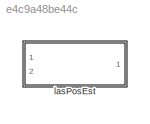
MODEL slx_e4c9a48be44c
KIND library
CONFIG AbsTol = auto
CONFIG EnableMultiTasking = off
CONFIG FixedStep = auto
CONFIG MaxStep = auto
CONFIG MinStep = auto
CONFIG RelTol = 1e-3
CONFIG SampleTimeConstraint = Unconstrained
CONFIG SolverName = VariableStepAuto
CONFIG StartTime = 0.0
CONFIG StopTime = 10.0
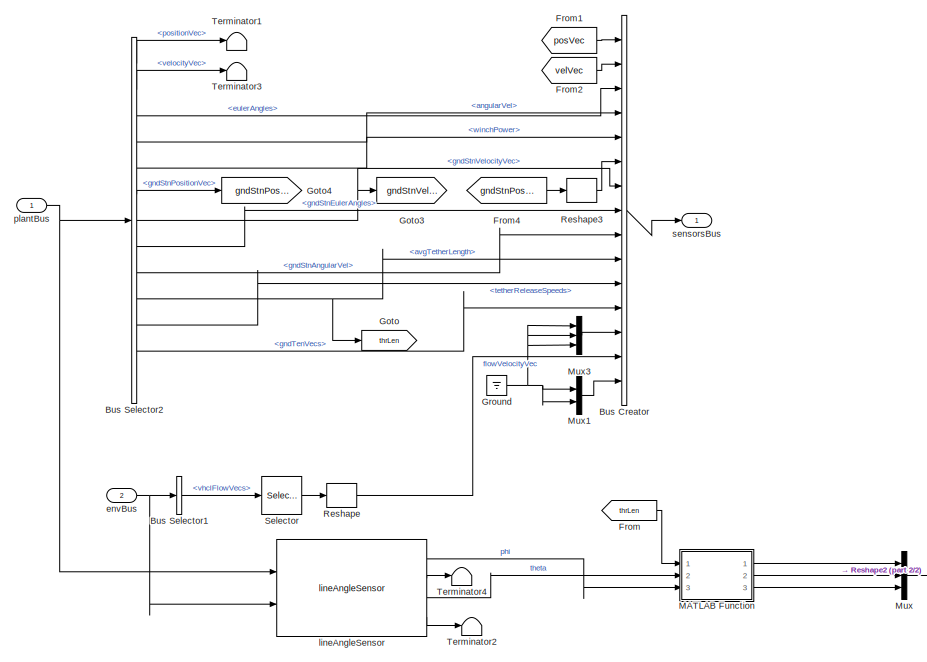
[diagram: lasPosEst - part 1/2, left side, full height]
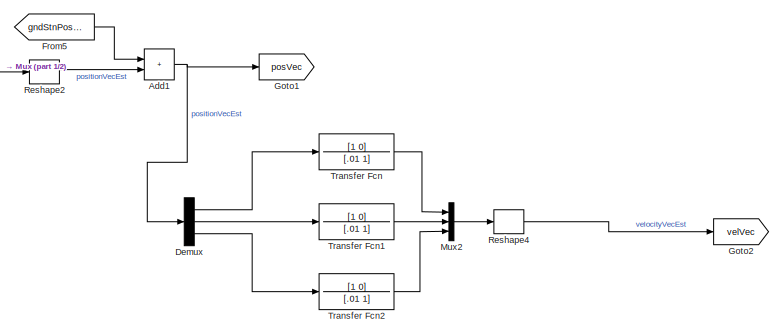
[diagram: lasPosEst - part 2/2, bottom right region]
BLOCK [SubSystem] lasPosEst
  InitFcn = initializeBussesFromBlock(gcb)
  LoadFcn = initializeBussesFromBlock(gcb)
  Ports = [2, 1]
  RequestExecContextInheritance = off
  StartFcn = initializeBussesFromBlock(gcb)
  VariantControl = VSS_sensors_lasPosEst
BLOCK [Sum] lasPosEst/Add1
  IconShape = rectangular
  Ports = [2, 1]
BLOCK [BusCreator] lasPosEst/Bus Creator
  DisplayOption = bar
  InheritFromInputs = off
  Inputs = 15
  NonVirtualBus = on
  OutDataTypeStr = Bus: sensorsBus
  Ports = [15, 1]
BLOCK [BusSelector] lasPosEst/Bus Selector1
  OutputSignals = vhclFlowVecs
  Ports = [1, 1]
BLOCK [BusSelector] lasPosEst/Bus Selector2
  OutputSignals = positionVec,velocityVec,eulerAngles,angularVel,winchPower,gndStnPositionVec,gndStnVelocityVec,gndStnEulerAngles,gndStnAngularVel,avgTetherLength,tetherReleaseSpeeds,gndTenVecs,airTenVecs
  Ports = [1, 13]
BLOCK [Demux] lasPosEst/Demux
  Outputs = 3
  Ports = [1, 3]
BLOCK [From] lasPosEst/From
  GotoTag = thrLen
BLOCK [From] lasPosEst/From1
  GotoTag = posVec
BLOCK [From] lasPosEst/From2
  GotoTag = velVec
BLOCK [From] lasPosEst/From4
  GotoTag = gndStnPosVec
BLOCK [From] lasPosEst/From5
  GotoTag = gndStnPosVec
BLOCK [Goto] lasPosEst/Goto
  GotoTag = thrLen
BLOCK [Goto] lasPosEst/Goto1
  GotoTag = posVec
BLOCK [Goto] lasPosEst/Goto2
  GotoTag = velVec
BLOCK [Goto] lasPosEst/Goto3
  GotoTag = gndStnVelVec
BLOCK [Goto] lasPosEst/Goto4
  GotoTag = gndStnPosVec
BLOCK [Ground] lasPosEst/Ground
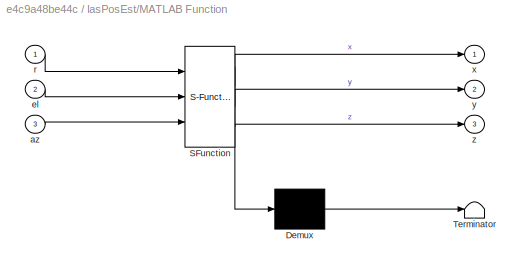
BLOCK [SubSystem] lasPosEst/MATLAB Function
  ErrorFcn = Stateflow.Translate.translate
  PermitHierarchicalResolution = ExplicitOnly
  Ports = [3, 3]
  RequestExecContextInheritance = off
  SFBlockType = MATLAB Function
  TreatAsAtomicUnit = on
BLOCK [Demux] lasPosEst/MATLAB Function/ Demux 
  Outputs = 1
  Ports = [1, 1]
BLOCK [S-Function] lasPosEst/MATLAB Function/ SFunction 
  EnableBusSupport = off
  FunctionName = sf_sfun
  PortCounts = [3 4]
  Ports = [3, 4]
  SFcnIsStateOwnerBlock = off
  SFunctionDeploymentMode = off
  Tag = Stateflow S-Function 1
BLOCK [Terminator] lasPosEst/MATLAB Function/ Terminator 
BLOCK [Inport] lasPosEst/MATLAB Function/az
  Port = 3
BLOCK [Inport] lasPosEst/MATLAB Function/el
  Port = 2
BLOCK [Inport] lasPosEst/MATLAB Function/r
BLOCK [Outport] lasPosEst/MATLAB Function/x
BLOCK [Outport] lasPosEst/MATLAB Function/y
  Port = 2
BLOCK [Outport] lasPosEst/MATLAB Function/z
  Port = 3
BLOCK [Mux] lasPosEst/Mux
  DisplayOption = bar
  Inputs = 3
  Ports = [3, 1]
BLOCK [Mux] lasPosEst/Mux1
  DisplayOption = bar
  Inputs = 2
  Ports = [2, 1]
BLOCK [Mux] lasPosEst/Mux2
  DisplayOption = bar
  Inputs = 3
  Ports = [3, 1]
BLOCK [Mux] lasPosEst/Mux3
  DisplayOption = bar
  Inputs = 3
  Ports = [3, 1]
BLOCK [Reshape] lasPosEst/Reshape
  OutputDimensionality = Column vector (2-D)
  Ports = [1, 1]
BLOCK [Reshape] lasPosEst/Reshape2
  OutputDimensionality = Column vector (2-D)
  Ports = [1, 1]
BLOCK [Reshape] lasPosEst/Reshape3
  OutputDimensionality = Column vector (2-D)
  Ports = [1, 1]
BLOCK [Reshape] lasPosEst/Reshape4
  OutputDimensionality = Column vector (2-D)
  Ports = [1, 1]
BLOCK [Selector] lasPosEst/Selector
  IndexOptions = Select all,Index vector (dialog)
  Indices = [1 3],1
  InputPortWidth = 3
  NumberOfDimensions = 2
  OutputSizes = 1,1
  Ports = [1, 1]
BLOCK [Terminator] lasPosEst/Terminator1
BLOCK [Terminator] lasPosEst/Terminator2
BLOCK [Terminator] lasPosEst/Terminator3
BLOCK [Terminator] lasPosEst/Terminator4
BLOCK [TransferFcn] lasPosEst/Transfer Fcn
  Denominator = [.01 1]
  Numerator = [1 0]
BLOCK [TransferFcn] lasPosEst/Transfer Fcn1
  Denominator = [.01 1]
  Numerator = [1 0]
BLOCK [TransferFcn] lasPosEst/Transfer Fcn2
  Denominator = [.01 1]
  Numerator = [1 0]
BLOCK [Inport] lasPosEst/envBus
  OutDataTypeStr = Bus: envBus
  Port = 2
BLOCK [Reference] lasPosEst/lineAngleSensor  REF=lineAngleSensor/lineAngleSensor
  Ports = [2, 4]
  SourceBlock = lineAngleSensor/lineAngleSensor
BLOCK [Inport] lasPosEst/plantBus
  OutDataTypeStr = Bus: plantBus
BLOCK [Outport] lasPosEst/sensorsBus
  OutDataTypeStr = Bus: sensorsBus
  VectorParamsAs1DForOutWhenUnconnected = off
NET lasPosEst/Add1:1 -> lasPosEst/Demux:1, lasPosEst/Goto1:1
LINE lasPosEst/Bus Creator:1 -> lasPosEst/sensorsBus:1
LINE lasPosEst/Bus Selector1:1 -> lasPosEst/Selector:1
LINE lasPosEst/Bus Selector2:1 -> lasPosEst/Terminator1:1
NET lasPosEst/Bus Selector2:10 -> lasPosEst/Bus Creator:10, lasPosEst/Goto:1
LINE lasPosEst/Bus Selector2:11 -> lasPosEst/Bus Creator:11
LINE lasPosEst/Bus Selector2:12 -> lasPosEst/Bus Creator:12
LINE lasPosEst/Bus Selector2:2 -> lasPosEst/Terminator3:1
LINE lasPosEst/Bus Selector2:3 -> lasPosEst/Bus Creator:3
LINE lasPosEst/Bus Selector2:4 -> lasPosEst/Bus Creator:4
LINE lasPosEst/Bus Selector2:5 -> lasPosEst/Bus Creator:5
LINE lasPosEst/Bus Selector2:6 -> lasPosEst/Goto4:1
NET lasPosEst/Bus Selector2:7 -> lasPosEst/Bus Creator:7, lasPosEst/Goto3:1
LINE lasPosEst/Bus Selector2:8 -> lasPosEst/Bus Creator:8
LINE lasPosEst/Bus Selector2:9 -> lasPosEst/Bus Creator:9
LINE lasPosEst/Demux:1 -> lasPosEst/Transfer Fcn:1
LINE lasPosEst/Demux:2 -> lasPosEst/Transfer Fcn1:1
LINE lasPosEst/Demux:3 -> lasPosEst/Transfer Fcn2:1
LINE lasPosEst/From1:1 -> lasPosEst/Bus Creator:1
LINE lasPosEst/From2:1 -> lasPosEst/Bus Creator:2
LINE lasPosEst/From4:1 -> lasPosEst/Reshape3:1
LINE lasPosEst/From5:1 -> lasPosEst/Add1:1
LINE lasPosEst/From:1 -> lasPosEst/MATLAB Function:1
NET lasPosEst/Ground:1 -> lasPosEst/Mux1:1, lasPosEst/Mux1:2, lasPosEst/Mux3:1, lasPosEst/Mux3:2, lasPosEst/Mux3:3
LINE lasPosEst/MATLAB Function:1 -> lasPosEst/Mux:1
LINE lasPosEst/MATLAB Function:2 -> lasPosEst/Mux:2
LINE lasPosEst/MATLAB Function:3 -> lasPosEst/Mux:3
LINE lasPosEst/Mux1:1 -> lasPosEst/Bus Creator:15
LINE lasPosEst/Mux2:1 -> lasPosEst/Reshape4:1
LINE lasPosEst/Mux3:1 -> lasPosEst/Bus Creator:13
LINE lasPosEst/Mux:1 -> lasPosEst/Reshape2:1
LINE lasPosEst/Reshape2:1 -> lasPosEst/Add1:2
LINE lasPosEst/Reshape3:1 -> lasPosEst/Bus Creator:6
LINE lasPosEst/Reshape4:1 -> lasPosEst/Goto2:1
LINE lasPosEst/Reshape:1 -> lasPosEst/Bus Creator:14
LINE lasPosEst/Selector:1 -> lasPosEst/Reshape:1
LINE lasPosEst/Transfer Fcn1:1 -> lasPosEst/Mux2:2
LINE lasPosEst/Transfer Fcn2:1 -> lasPosEst/Mux2:3
LINE lasPosEst/Transfer Fcn:1 -> lasPosEst/Mux2:1
NET lasPosEst/envBus:1 -> lasPosEst/Bus Selector1:1, lasPosEst/lineAngleSensor:2
LINE lasPosEst/lineAngleSensor:1 -> lasPosEst/MATLAB Function:3
LINE lasPosEst/lineAngleSensor:2 -> lasPosEst/Terminator4:1
LINE lasPosEst/lineAngleSensor:3 -> lasPosEst/MATLAB Function:2
LINE lasPosEst/lineAngleSensor:4 -> lasPosEst/Terminator2:1
NET lasPosEst/plantBus:1 -> lasPosEst/Bus Selector2:1, lasPosEst/lineAngleSensor:1
note: NET lines group one-source signal fan-out (src -> all destinations, sorted); 1:1 wires keep LINE
CHART lasPosEst/MATLAB Function states=1 transitions=1
  STATE_LABEL 'eML_blk_kernel()'
  STATE_LABEL 'SCRIPT:\nfunction [x,y,z] = fcn(r,el,az)\n\nx = r * cos(el) * cos(az);\ny = r * cos(el) * sin(az);\nz = r * sin(el);\n\n'
CHART  states=0 transitions=0
